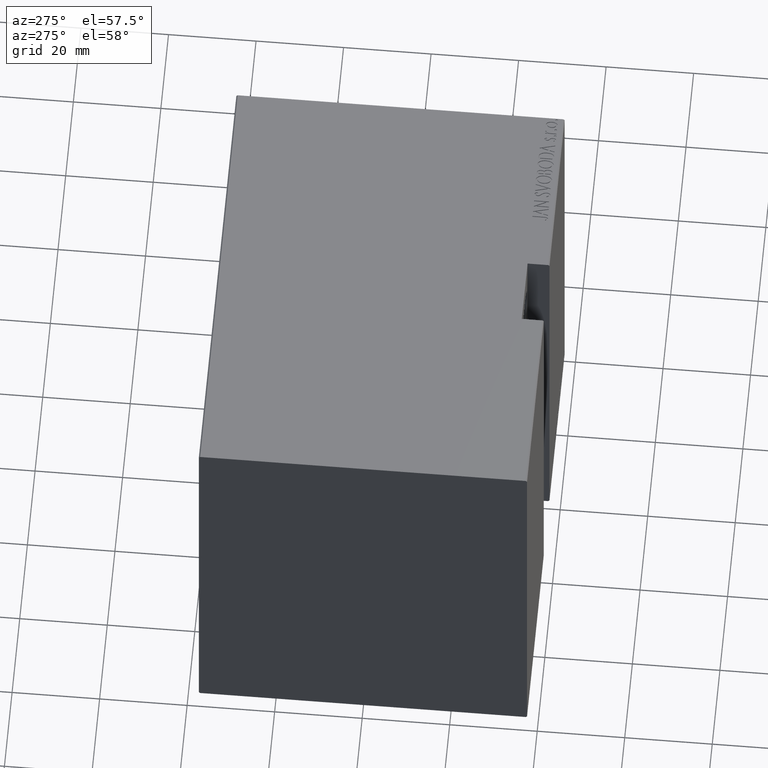
[diagram: clean part render]
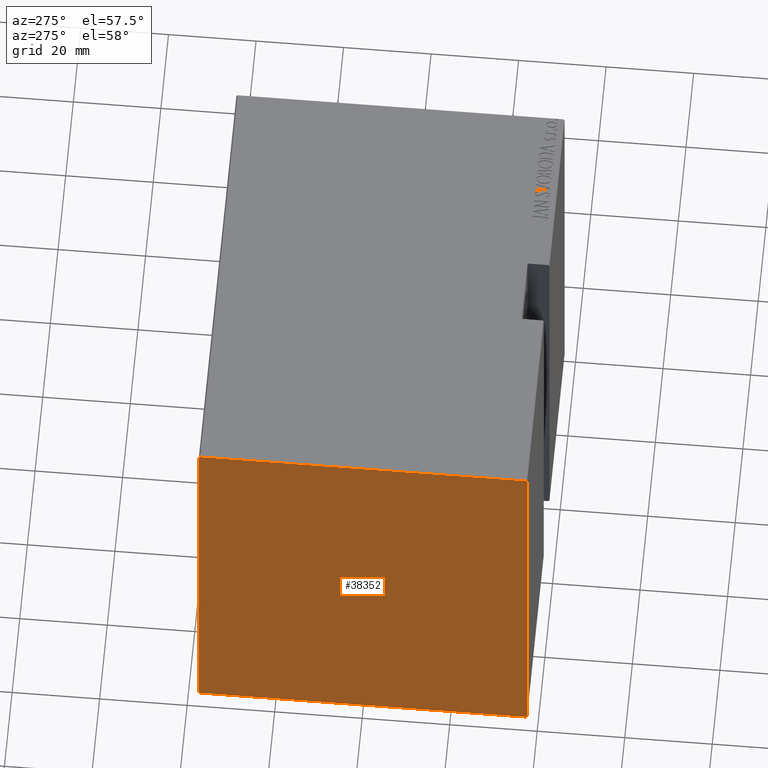
[diagram: same view with one face highlighted and labeled with its STEP entity id]
A machine part, auxiliary view. The second image highlights one B-rep face of the part: STEP entity #38352.
In plain terms, the highlighted planar face has unit normal (-1, 0, 0).
Its self-contained STEP definition (entity closure, byte-faithful):
#1578 = VECTOR ( 'NONE', #25505, 1000.000000000000000 ) ;
#1936 = DIRECTION ( 'NONE',  ( 0.000000000000000000, 1.000000000000000000, 9.251858538542970348E-17 ) ) ;
#2708 = EDGE_CURVE ( 'NONE', #11037, #9254, #19617, .T. ) ;
#3006 = EDGE_CURVE ( 'NONE', #9254, #19844, #27537, .T. ) ;
#4663 = CARTESIAN_POINT ( 'NONE',  ( 98.00000000000000000, -37.19999999999997442, -50.00000000000001421 ) ) ;
#5047 = ORIENTED_EDGE ( 'NONE', *, *, #22595, .T. ) ;
#5501 = ORIENTED_EDGE ( 'NONE', *, *, #3006, .T. ) ;
#5603 = CARTESIAN_POINT ( 'NONE',  ( 98.00000000000000000, -37.50000000000000000, -50.00000000000001421 ) ) ;
#6478 = CARTESIAN_POINT ( 'NONE',  ( 98.00000000000000000, 37.19999999999998153, 50.00000000000001421 ) ) ;
#7615 = CARTESIAN_POINT ( 'NONE',  ( 98.00000000000000000, -43.59999999999999432, -43.59999999999999432 ) ) ;
#8404 = CARTESIAN_POINT ( 'NONE',  ( 98.00000000000000000, -37.50000000000000000, 49.69999999999998153 ) ) ;
#9254 = VERTEX_POINT ( 'NONE', #19235 ) ;
#9281 = VERTEX_POINT ( 'NONE', #41793 ) ;
#10390 = CARTESIAN_POINT ( 'NONE',  ( 98.00000000000000000, 43.60000000000042775, 43.59999999999941878 ) ) ;
#10395 = DIRECTION ( 'NONE',  ( 0.000000000000000000, -1.000000000000000000, -1.850371707708594563E-16 ) ) ;
#10550 = EDGE_CURVE ( 'NONE', #19844, #27043, #37050, .T. ) ;
#11037 = VERTEX_POINT ( 'NONE', #15682 ) ;
#11269 = ORIENTED_EDGE ( 'NONE', *, *, #10550, .T. ) ;
#11404 = VECTOR ( 'NONE', #10395, 1000.000000000000000 ) ;
#12805 = CARTESIAN_POINT ( 'NONE',  ( 98.00000000000000000, 0.000000000000000000, 0.000000000000000000 ) ) ;
#13697 = LINE ( 'NONE', #40570, #20176 ) ;
#14217 = LINE ( 'NONE', #37399, #27512 ) ;
#15013 = VECTOR ( 'NONE', #21459, 1000.000000000000114 ) ;
#15682 = CARTESIAN_POINT ( 'NONE',  ( 98.00000000000000000, 37.50000000000000711, -49.70000000000000284 ) ) ;
#15957 = EDGE_LOOP ( 'NONE', ( #37160, #37607, #20474, #5501, #11269, #36866, #5047, #29924 ) ) ;
#16208 = LINE ( 'NONE', #27038, #17903 ) ;
#17679 = DIRECTION ( 'NONE',  ( 0.000000000000000000, -0.7071067811865556774, -0.7071067811865392461 ) ) ;
#17811 = EDGE_CURVE ( 'NONE', #24311, #37002, #41404, .T. ) ;
#17903 = VECTOR ( 'NONE', #37209, 1000.000000000000000 ) ;
#18340 = EDGE_CURVE ( 'NONE', #27043, #34839, #14217, .T. ) ;
#18829 = AXIS2_PLACEMENT_3D ( 'NONE', #12805, #26446, #35569 ) ;
#19235 = CARTESIAN_POINT ( 'NONE',  ( 98.00000000000000000, 37.49999999999999289, 49.70000000000000284 ) ) ;
#19617 = LINE ( 'NONE', #29396, #1578 ) ;
#19844 = VERTEX_POINT ( 'NONE', #6478 ) ;
#20176 = VECTOR ( 'NONE', #36657, 1000.000000000000114 ) ;
#20360 = DIRECTION ( 'NONE',  ( -0.000000000000000000, -0.7071067811865392461, 0.7071067811865556774 ) ) ;
#20474 = ORIENTED_EDGE ( 'NONE', *, *, #2708, .T. ) ;
#21459 = DIRECTION ( 'NONE',  ( -0.000000000000000000, 0.7071067811865474617, -0.7071067811865474617 ) ) ;
#22595 = EDGE_CURVE ( 'NONE', #34839, #24311, #16208, .T. ) ;
#22977 = FACE_OUTER_BOUND ( 'NONE', #15957, .T. ) ;
#24160 = VECTOR ( 'NONE', #1936, 1000.000000000000000 ) ;
#24311 = VERTEX_POINT ( 'NONE', #30597 ) ;
#24668 = EDGE_CURVE ( 'NONE', #37002, #9281, #31605, .T. ) ;
#25505 = DIRECTION ( 'NONE',  ( 0.000000000000000000, -1.387778780781445182E-16, 1.000000000000000000 ) ) ;
#26446 = DIRECTION ( 'NONE',  ( 1.000000000000000000, 0.000000000000000000, 0.000000000000000000 ) ) ;
#27038 = CARTESIAN_POINT ( 'NONE',  ( 98.00000000000000000, -37.50000000000000000, 50.00000000000000000 ) ) ;
#27043 = VERTEX_POINT ( 'NONE', #37618 ) ;
#27512 = VECTOR ( 'NONE', #17679, 1000.000000000000114 ) ;
#27537 = LINE ( 'NONE', #10390, #30608 ) ;
#29396 = CARTESIAN_POINT ( 'NONE',  ( 98.00000000000000000, 37.50000000000000711, -50.00000000000000711 ) ) ;
#29924 = ORIENTED_EDGE ( 'NONE', *, *, #17811, .T. ) ;
#30597 = CARTESIAN_POINT ( 'NONE',  ( 98.00000000000000000, -37.50000000000000000, -49.69999999999999574 ) ) ;
#30608 = VECTOR ( 'NONE', #20360, 1000.000000000000114 ) ;
#31605 = LINE ( 'NONE', #5603, #24160 ) ;
#33164 = PLANE ( 'NONE',  #18829 ) ;
#34839 = VERTEX_POINT ( 'NONE', #8404 ) ;
#35569 = DIRECTION ( 'NONE',  ( 0.000000000000000000, 0.000000000000000000, -1.000000000000000000 ) ) ;
#36657 = DIRECTION ( 'NONE',  ( -0.000000000000000000, 0.7071067811865556774, 0.7071067811865392461 ) ) ;
#36866 = ORIENTED_EDGE ( 'NONE', *, *, #18340, .T. ) ;
#37002 = VERTEX_POINT ( 'NONE', #4663 ) ;
#37050 = LINE ( 'NONE', #37491, #11404 ) ;
#37160 = ORIENTED_EDGE ( 'NONE', *, *, #24668, .T. ) ;
#37209 = DIRECTION ( 'NONE',  ( 0.000000000000000000, 0.000000000000000000, -1.000000000000000000 ) ) ;
#37266 = EDGE_CURVE ( 'NONE', #9281, #11037, #13697, .T. ) ;
#37399 = CARTESIAN_POINT ( 'NONE',  ( 98.00000000000000000, -43.59999999999956088, 43.60000000000057696 ) ) ;
#37491 = CARTESIAN_POINT ( 'NONE',  ( 98.00000000000000000, 37.49999999999999289, 50.00000000000001421 ) ) ;
#37607 = ORIENTED_EDGE ( 'NONE', *, *, #37266, .T. ) ;
#37618 = CARTESIAN_POINT ( 'NONE',  ( 98.00000000000000000, -37.19999999999996732, 50.00000000000000000 ) ) ;
#38352 = ADVANCED_FACE ( 'NONE', ( #22977 ), #33164, .T. ) ;
#40570 = CARTESIAN_POINT ( 'NONE',  ( 98.00000000000000000, 43.59999999999956088, -43.60000000000057696 ) ) ;
#41404 = LINE ( 'NONE', #7615, #15013 ) ;
#41793 = CARTESIAN_POINT ( 'NONE',  ( 98.00000000000000000, 37.19999999999998863, -50.00000000000000711 ) ) ;